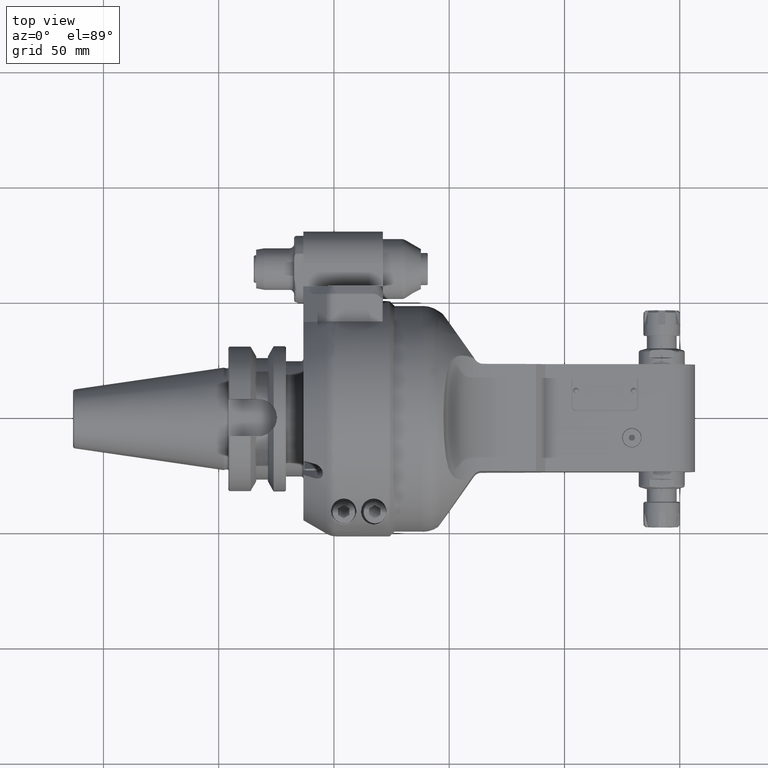
[diagram: clean part render]
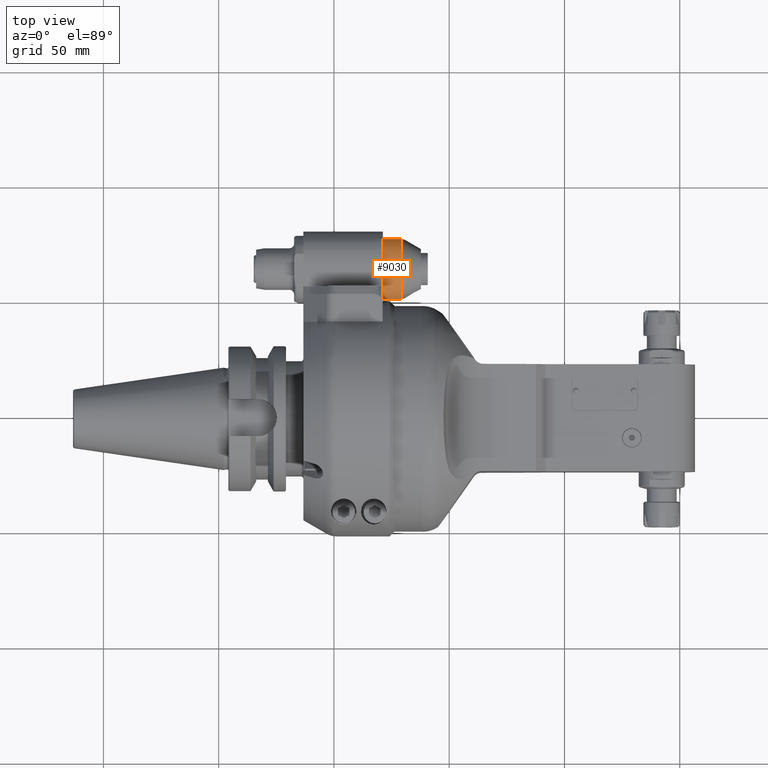
[diagram: same view with one face highlighted and labeled with its STEP entity id]
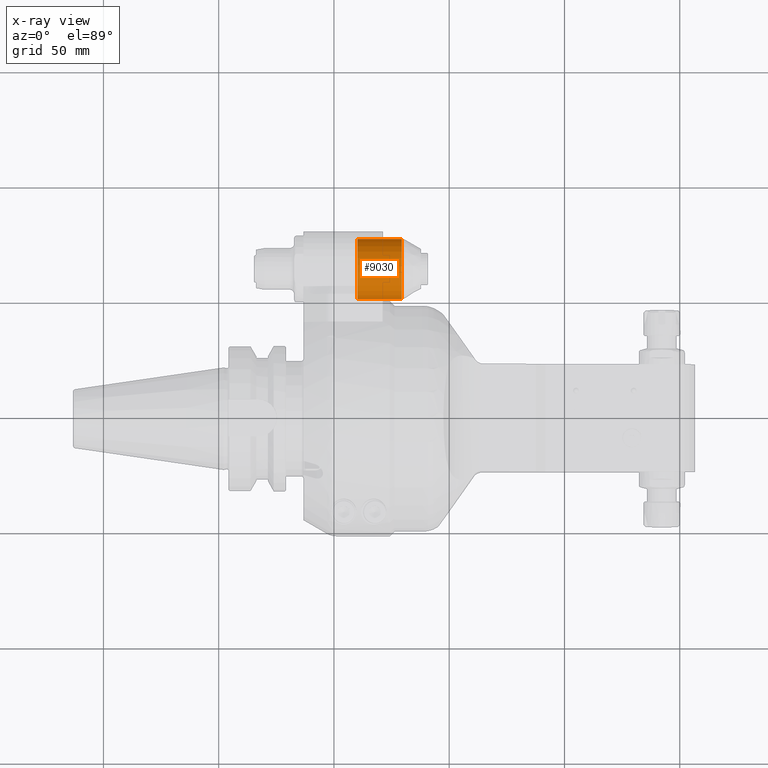
[diagram: x-ray of the same camera — body ghosted, the highlighted face saturated]
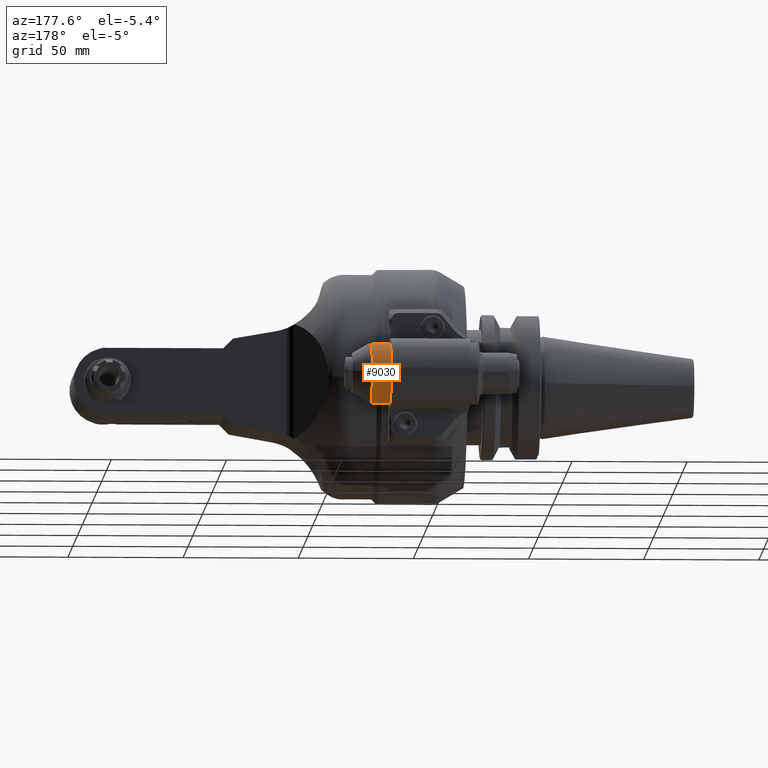
[diagram: same view with one face highlighted and labeled with its STEP entity id]
A machine part, top view. The second image highlights one B-rep face of the part: STEP entity #9030.
The next image is the same camera in x-ray: the body ghosted, the highlighted face saturated — about 0% of this face is hidden behind the body in this view.
A second angle (auxiliary view) of the same face is appended — the face is thin or edge-on in the first view.
In plain terms, the highlighted cylindrical surface (bore or boss wall) has radius 13 mm, axis along (1, 0, 0).
Its self-contained STEP definition (entity closure, byte-faithful):
#804=FACE_OUTER_BOUND('',#1381,.T.);
#1381=EDGE_LOOP('',(#6780,#6781,#6782,#6783,#6784));
#1964=CIRCLE('',#9750,13.);
#1965=CIRCLE('',#9752,13.);
#1966=CIRCLE('',#9753,13.);
#2657=LINE('',#14435,#3301);
#3301=VECTOR('',#11235,13.);
#3995=VERTEX_POINT('',#14428);
#3996=VERTEX_POINT('',#14431);
#3997=VERTEX_POINT('',#14432);
#5031=EDGE_CURVE('',#3995,#3995,#1964,.T.);
#5032=EDGE_CURVE('',#3996,#3997,#1965,.T.);
#5033=EDGE_CURVE('',#3997,#3996,#1966,.T.);
#5034=EDGE_CURVE('',#3997,#3995,#2657,.T.);
#6780=ORIENTED_EDGE('',*,*,#5032,.F.);
#6781=ORIENTED_EDGE('',*,*,#5033,.F.);
#6782=ORIENTED_EDGE('',*,*,#5034,.T.);
#6783=ORIENTED_EDGE('',*,*,#5031,.F.);
#6784=ORIENTED_EDGE('',*,*,#5034,.F.);
#8769=CYLINDRICAL_SURFACE('',#9751,13.);
#9030=ADVANCED_FACE('',(#804),#8769,.T.);
#9750=AXIS2_PLACEMENT_3D('',#14429,#11227,#11228);
#9751=AXIS2_PLACEMENT_3D('',#14430,#11229,#11230);
#9752=AXIS2_PLACEMENT_3D('',#14433,#11231,#11232);
#9753=AXIS2_PLACEMENT_3D('',#14434,#11233,#11234);
#11227=DIRECTION('center_axis',(-1.,0.,0.));
#11228=DIRECTION('ref_axis',(0.,1.,0.));
#11229=DIRECTION('center_axis',(1.,0.,0.));
#11230=DIRECTION('ref_axis',(0.,1.,0.));
#11231=DIRECTION('center_axis',(1.,0.,0.));
#11232=DIRECTION('ref_axis',(0.,-1.,0.));
#11233=DIRECTION('center_axis',(1.,0.,0.));
#11234=DIRECTION('ref_axis',(0.,-1.,0.));
#11235=DIRECTION('',(-1.,0.,0.));
#14428=CARTESIAN_POINT('',(-28.,52.,-1.59204083889156E-15));
#14429=CARTESIAN_POINT('Origin',(-28.,65.,0.));
#14430=CARTESIAN_POINT('Origin',(-17.,65.,0.));
#14431=CARTESIAN_POINT('',(-8.803847577293,78.,0.));
#14432=CARTESIAN_POINT('',(-8.803847577293,52.,-1.59204083889156E-15));
#14433=CARTESIAN_POINT('Origin',(-8.803847577293,65.,0.));
#14434=CARTESIAN_POINT('Origin',(-8.803847577293,65.,0.));
#14435=CARTESIAN_POINT('',(-17.,52.,-1.59204083889156E-15));